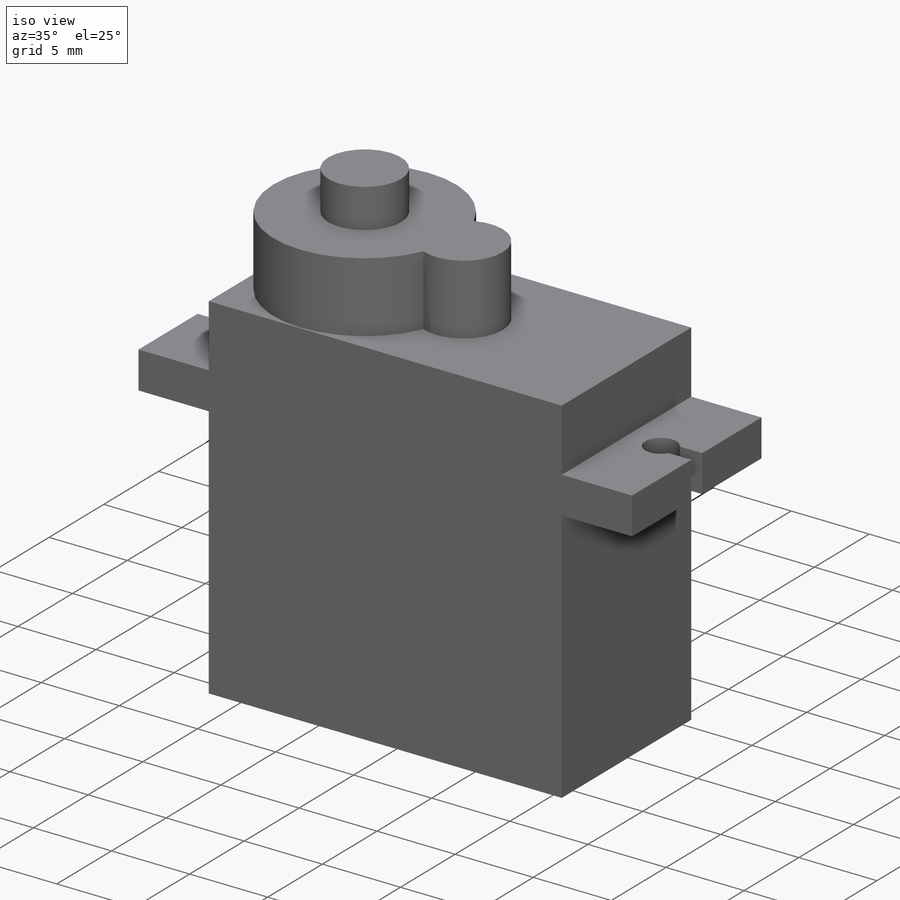
[diagram: iso view]
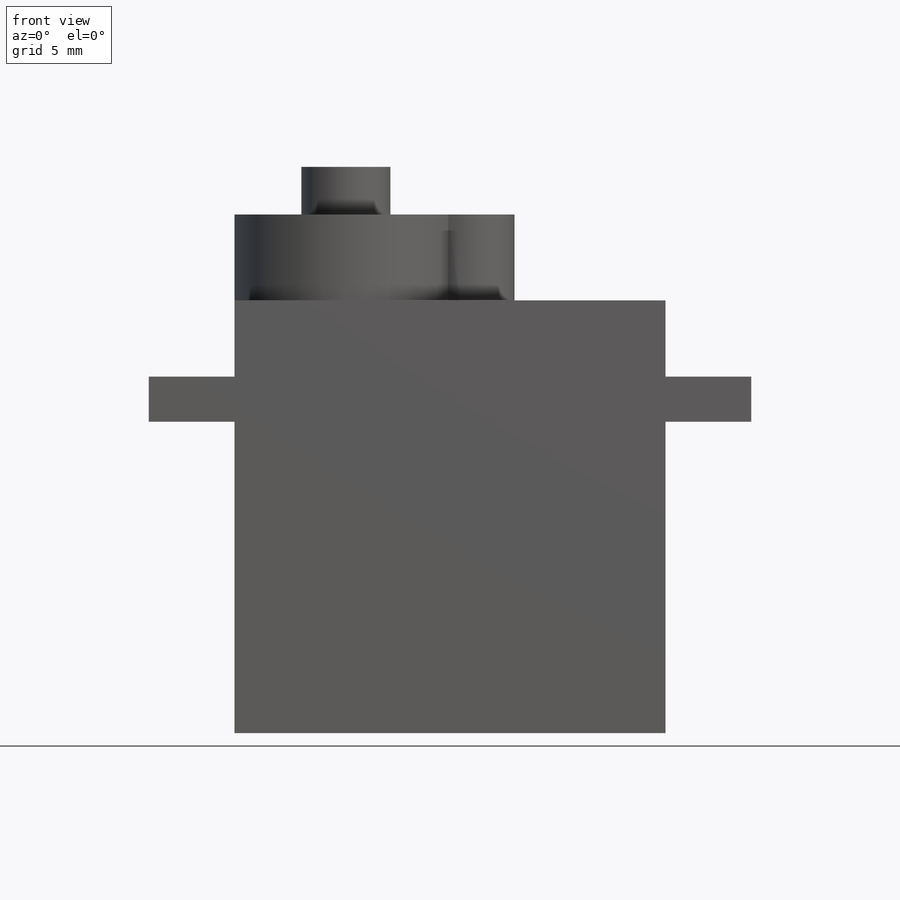
[diagram: front view]
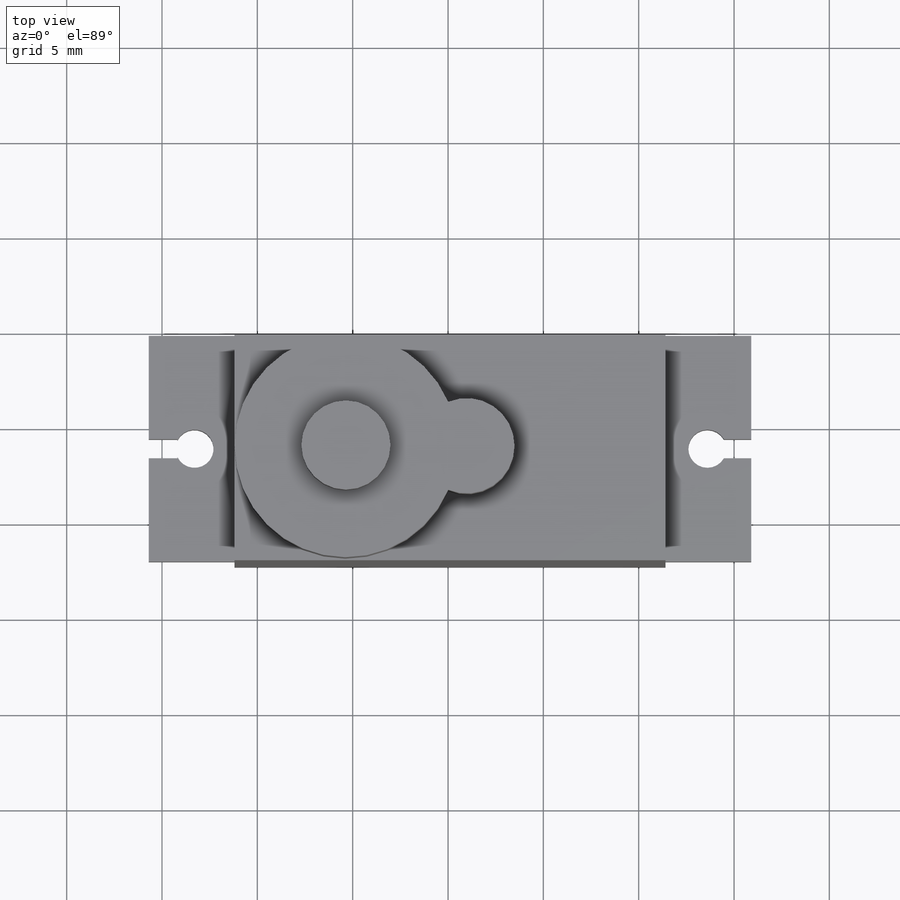
[diagram: top view]
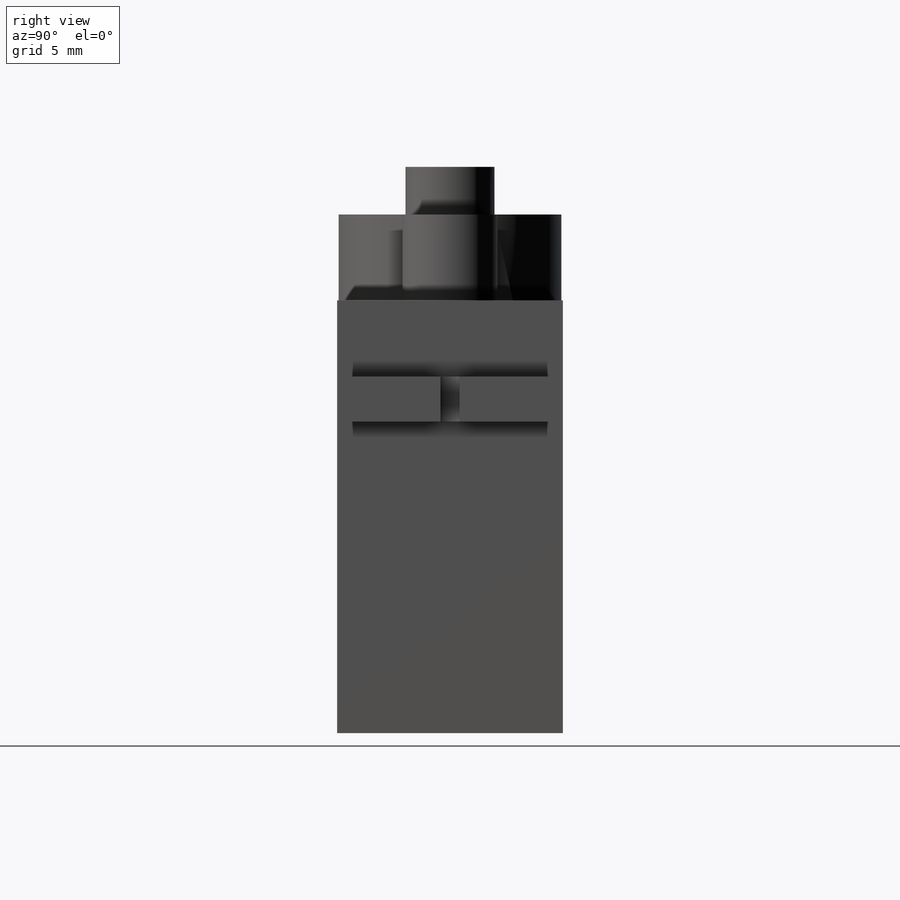
[diagram: right view]
SOLIDWORKS PART (.sldprt)
format: sldprt  version: not decoded by parser v0  size: 271,360 bytes
history: native  units: mm
features: sketch x10, extrude x6, plane x2, cut_extrude x2, material x1 (+12 scaffold rows collapsed)
feature tree (33):
  scaffold x12  (default folders/planes/origin — collapsed)
  material  "Material <not specified>"
  sketch  "Sketch1"  dims[D1=22.6mm D2=11.84mm]
  extrude  "Boss-Extrude1"  Depth=22.7mm
  plane  "Plane1"
  sketch  "Sketch2"  dims[D1=5.83mm]
  plane  "Plane2"
  sketch  "Sketch3"
  sketch  "Sketch4"  dims[D1=5.84mm]
  extrude  "Boss-Extrude6"  Depth=4.5mm
  sketch  "Sketch12"  dims[D1=~2.887683mm]
  extrude  "Boss-Extrude7"  Depth=2.5mm
  sketch  "Sketch13"  dims[D1=0.5mm]
  extrude  "Boss-Extrude8"  Depth=4.5mm
  sketch  "Sketch14"  dims[D1=2.37mm]
  extrude  "Boss-Extrude10"  Depth=4.5mm
  sketch  "Sketch15"  dims[D1=2.3mm]
  cut_extrude  "Cut-Extrude3"  [1 undecoded]
  sketch  "Sketch16"  dims[D1=2.37mm]
  extrude  "Boss-Extrude11"  Depth=4.5mm
  sketch  "Sketch17"  dims[D1=2.4mm]
  cut_extrude  "Cut-Extrude4"  [1 undecoded]
decode coverage: 15 of 18 modeling features carry decoded parameters
note: ~ marks probable driven/reference dimensions
note: 2 parameter values undecoded
note: suppression state not decoded; provenance and decode notes live in map.json
